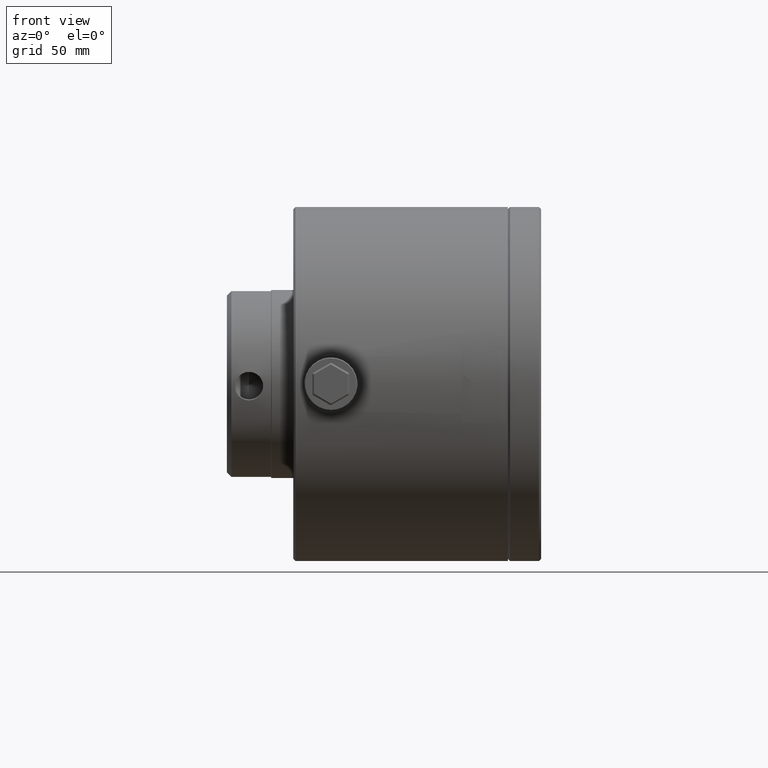
[diagram: clean part render]
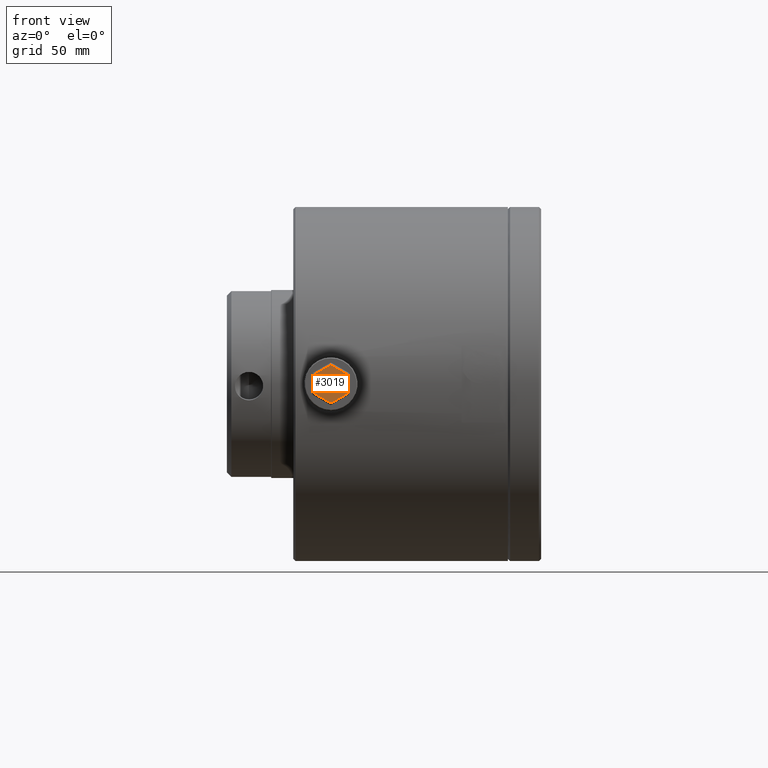
[diagram: same view with one face highlighted and labeled with its STEP entity id]
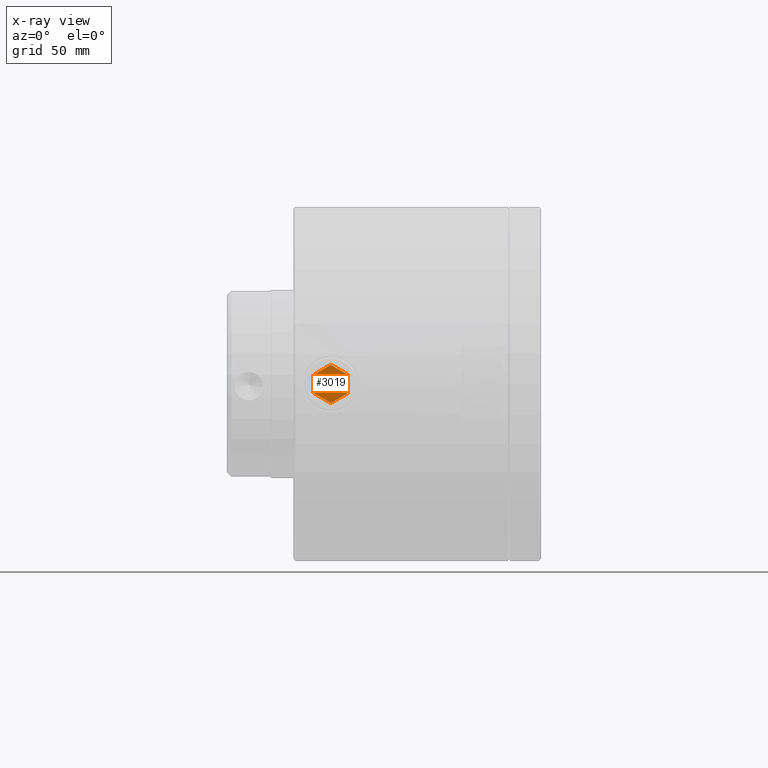
[diagram: x-ray of the same camera — body ghosted, the highlighted face saturated]
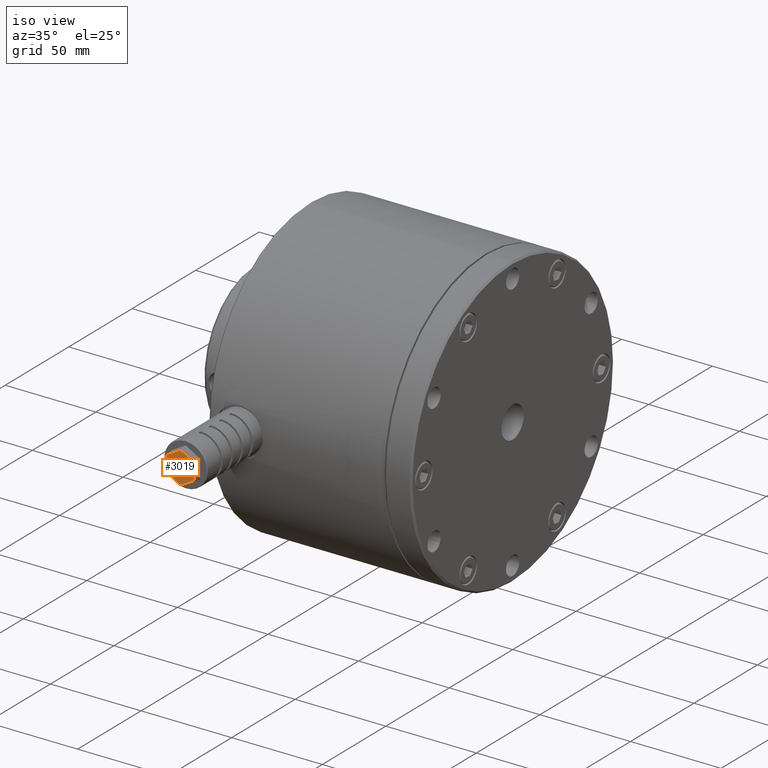
[diagram: same view with one face highlighted and labeled with its STEP entity id]
A machine part, front view. The second image highlights one B-rep face of the part: STEP entity #3019.
The next image is the same camera in x-ray: the body ghosted, the highlighted face saturated — about 0% of this face is hidden behind the body in this view.
A second angle (iso view) of the same face is appended — the face is thin or edge-on in the first view.
In plain terms, the highlighted planar face has unit normal (0, -1, 0).
Its self-contained STEP definition (entity closure, byte-faithful):
#166 = CARTESIAN_POINT ( 'NONE',  ( -87.50000000000000000, -126.0000000000000000, -4.330127018922210500 ) ) ;
#427 = VECTOR ( 'NONE', #29425, 1000.000000000000000 ) ;
#618 = VECTOR ( 'NONE', #19402, 1000.000000000000000 ) ;
#684 = CARTESIAN_POINT ( 'NONE',  ( -87.75000000000000000, -126.0000000000000000, 4.185789451624774700 ) ) ;
#1159 = EDGE_CURVE ( 'NONE', #9250, #7690, #26344, .T. ) ;
#2607 = CARTESIAN_POINT ( 'NONE',  ( -72.50000000000000000, -126.0000000000000000, -4.330127018922199900 ) ) ;
#3019 = ADVANCED_FACE ( 'NONE', ( #30092 ), #18192, .T. ) ;
#3307 = LINE ( 'NONE', #14702, #20018 ) ;
#3702 = ORIENTED_EDGE ( 'NONE', *, *, #31371, .T. ) ;
#3903 = DIRECTION ( 'NONE',  ( 0.8660254037844387100, 0.0000000000000000000, -0.4999999999999998900 ) ) ;
#6080 = LINE ( 'NONE', #14054, #14397 ) ;
#6577 = EDGE_CURVE ( 'NONE', #28084, #9894, #29531, .T. ) ;
#6860 = LINE ( 'NONE', #29012, #427 ) ;
#7199 = CARTESIAN_POINT ( 'NONE',  ( -72.25000000000000000, -126.0000000000000000, -4.185789451624794200 ) ) ;
#7690 = VERTEX_POINT ( 'NONE', #2607 ) ;
#7857 = ORIENTED_EDGE ( 'NONE', *, *, #16122, .T. ) ;
#8176 = DIRECTION ( 'NONE',  ( -0.8660254037844387100, 0.0000000000000000000, -0.4999999999999998900 ) ) ;
#8540 = CARTESIAN_POINT ( 'NONE',  ( -80.00000000000000000, -126.0000000000000000, -9.237604307034029500 ) ) ;
#9250 = VERTEX_POINT ( 'NONE', #16568 ) ;
#9894 = VERTEX_POINT ( 'NONE', #20447 ) ;
#10318 = ORIENTED_EDGE ( 'NONE', *, *, #22100, .T. ) ;
#11648 = ORIENTED_EDGE ( 'NONE', *, *, #12958, .T. ) ;
#11972 = VECTOR ( 'NONE', #3903, 1000.000000000000000 ) ;
#12421 = VERTEX_POINT ( 'NONE', #21284 ) ;
#12958 = EDGE_CURVE ( 'NONE', #12421, #28084, #3307, .T. ) ;
#13430 = DIRECTION ( 'NONE',  ( 0.0000000000000000000, -1.000000000000000000, 0.0000000000000000000 ) ) ;
#14054 = CARTESIAN_POINT ( 'NONE',  ( -87.50000000000000000, -126.0000000000000000, -4.618802153517020100 ) ) ;
#14397 = VECTOR ( 'NONE', #23790, 1000.000000000000000 ) ;
#14429 = CARTESIAN_POINT ( 'NONE',  ( -80.00000000000000000, -126.0000000000000000, 8.660254037844380200 ) ) ;
#14702 = CARTESIAN_POINT ( 'NONE',  ( -80.25000000000000000, -126.0000000000000000, 8.804591605141778700 ) ) ;
#15853 = DIRECTION ( 'NONE',  ( 0.0000000000000000000, 0.0000000000000000000, -1.000000000000000000 ) ) ;
#16122 = EDGE_CURVE ( 'NONE', #26746, #9250, #28221, .T. ) ;
#16568 = CARTESIAN_POINT ( 'NONE',  ( -80.00000000000000000, -126.0000000000000000, -8.660254037844399700 ) ) ;
#18192 = PLANE ( 'NONE',  #23532 ) ;
#18428 = CARTESIAN_POINT ( 'NONE',  ( -79.75000000000000000, -126.0000000000000000, -8.804591605141810700 ) ) ;
#19402 = DIRECTION ( 'NONE',  ( 0.8660254037844387100, 0.0000000000000000000, 0.4999999999999998900 ) ) ;
#20018 = VECTOR ( 'NONE', #24425, 1000.000000000000000 ) ;
#20447 = CARTESIAN_POINT ( 'NONE',  ( -87.50000000000000000, -126.0000000000000000, 4.330127018922180300 ) ) ;
#21284 = CARTESIAN_POINT ( 'NONE',  ( -72.50000000000000000, -126.0000000000000000, 4.330127018922185700 ) ) ;
#22100 = EDGE_CURVE ( 'NONE', #7690, #12421, #6860, .T. ) ;
#23510 = VECTOR ( 'NONE', #8176, 1000.000000000000000 ) ;
#23532 = AXIS2_PLACEMENT_3D ( 'NONE', #8540, #13430, #15853 ) ;
#23790 = DIRECTION ( 'NONE',  ( 0.0000000000000000000, 0.0000000000000000000, -1.000000000000000000 ) ) ;
#24425 = DIRECTION ( 'NONE',  ( -0.8660254037844387100, 0.0000000000000000000, 0.4999999999999998900 ) ) ;
#26344 = LINE ( 'NONE', #7199, #618 ) ;
#26746 = VERTEX_POINT ( 'NONE', #166 ) ;
#28084 = VERTEX_POINT ( 'NONE', #14429 ) ;
#28104 = EDGE_LOOP ( 'NONE', ( #28774, #3702, #7857, #30211, #10318, #11648 ) ) ;
#28221 = LINE ( 'NONE', #18428, #11972 ) ;
#28774 = ORIENTED_EDGE ( 'NONE', *, *, #6577, .T. ) ;
#29012 = CARTESIAN_POINT ( 'NONE',  ( -72.50000000000000000, -126.0000000000000000, 4.618802153516989900 ) ) ;
#29425 = DIRECTION ( 'NONE',  ( 0.0000000000000000000, 0.0000000000000000000, 1.000000000000000000 ) ) ;
#29531 = LINE ( 'NONE', #684, #23510 ) ;
#30092 = FACE_OUTER_BOUND ( 'NONE', #28104, .T. ) ;
#30211 = ORIENTED_EDGE ( 'NONE', *, *, #1159, .T. ) ;
#31371 = EDGE_CURVE ( 'NONE', #9894, #26746, #6080, .T. ) ;